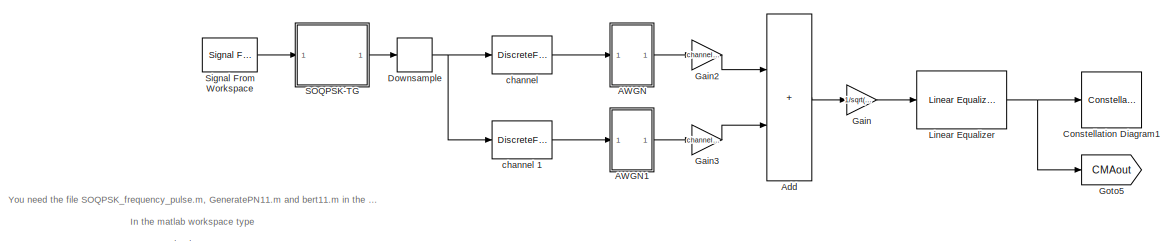
[diagram: root canvas - part 1/2, full width, top band]
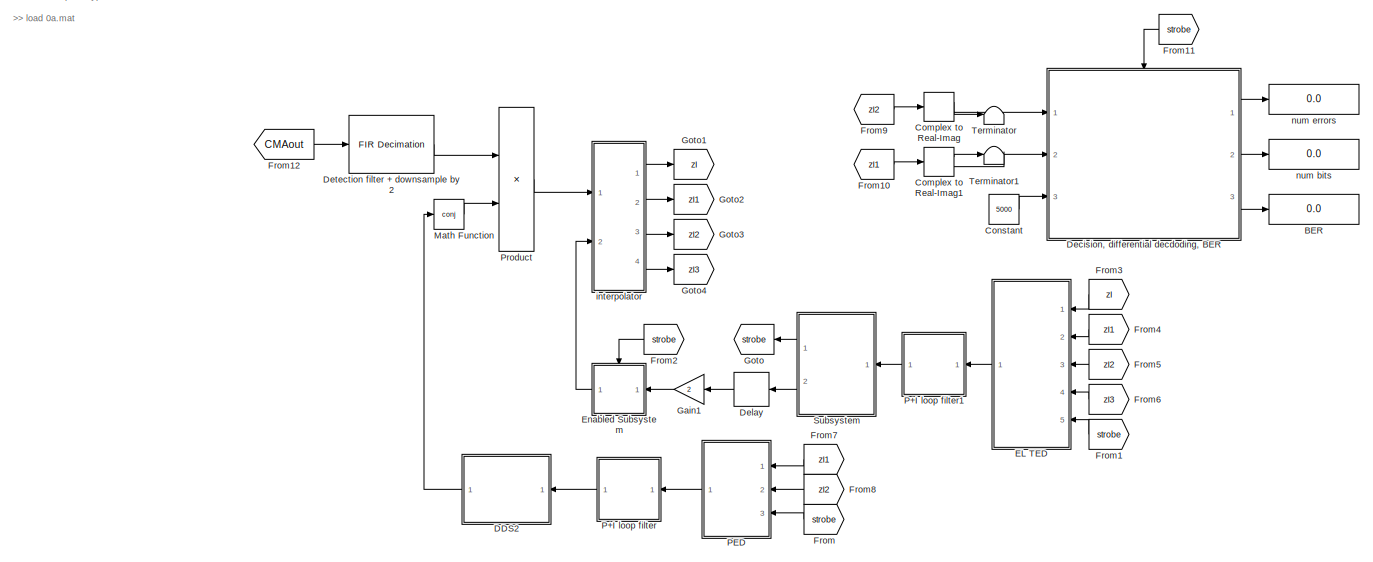
[diagram: root canvas - part 2/2, full width, middle band]
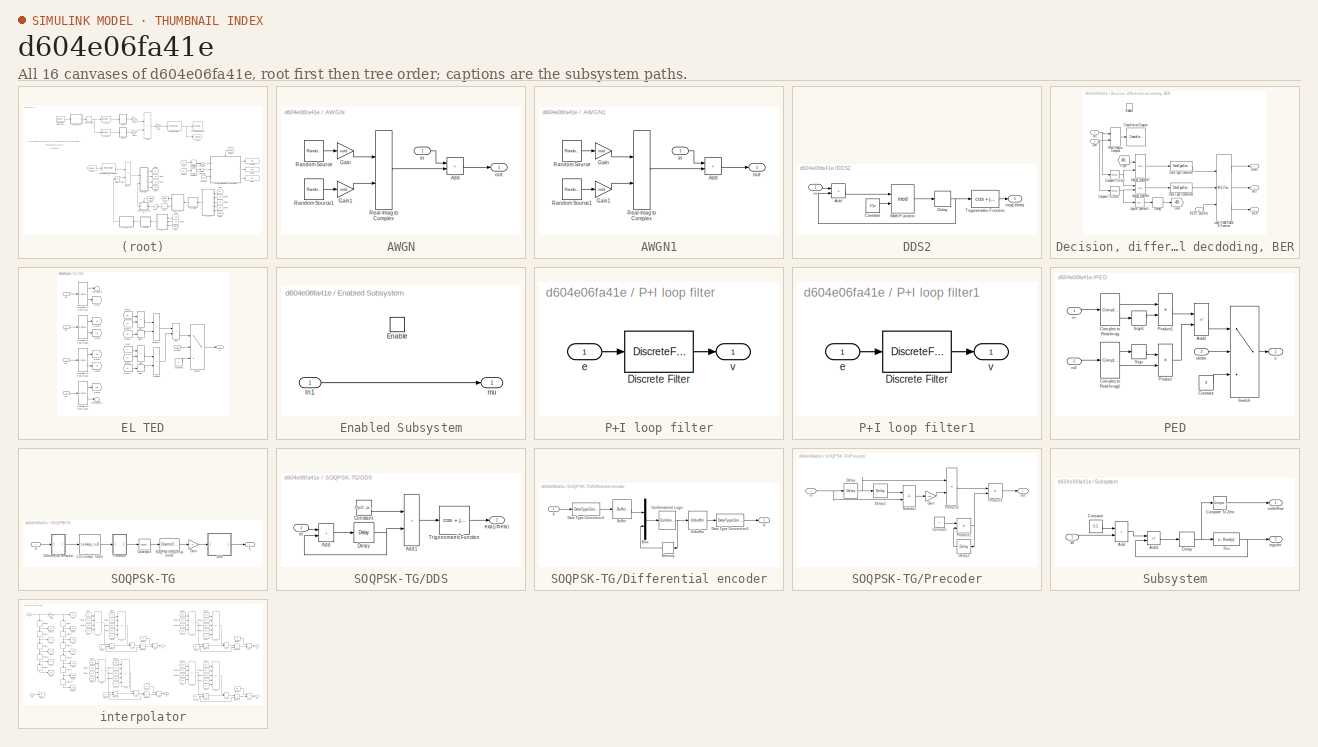
[diagram: thumbnail index - all 16 canvases of the model, root first then tree order]
MODEL slx_d604e06fa41e
KIND model
CONFIG AbsTol = auto
CONFIG EnableMultiTasking = off
CONFIG FixedStep = auto
CONFIG InitFcn = KCMA = 25;\npn11 = GeneratePN11;\nDetectionFilter = [0.010378066969709\n   0.023688987704657\n   0.009767134822858\n  -0.027017804469398\n  -0.089762303133391\n  -0.110346523809347\n  -0.051853991233850\n   0.154921158891652\n   0.568943123186263\n   0.792392871766106\n   0.792392871766106\n   0.568943123186263\n   0.154921158891652\n  -0.051853991233850\n  -0.110346523809347\n  -0.089762303133391\n  -0.02701780446...<+247ch>
CONFIG MaxStep = auto
CONFIG MinStep = auto
CONFIG RelTol = 1e-3
CONFIG SampleTimeConstraint = Unconstrained
CONFIG SolverName = FixedStepDiscrete
CONFIG StartTime = 0.0
CONFIG StopTime = 50000000
BLOCK [SubSystem] AWGN
  Ports = [1, 1]
  RequestExecContextInheritance = off
BLOCK [Sum] AWGN/Add
  IconShape = rectangular
  Ports = [2, 1]
BLOCK [Gain] AWGN/Gain
  Gain = nstd
BLOCK [Gain] AWGN/Gain1
  Gain = nstd
BLOCK [Reference] AWGN/Random Source  REF=dspsrcs4/Random
Source
  Ports = [0, 1]
  SourceBlock = dspsrcs4/Random\nSource
  SourceProductBaseCode = DS
  SourceType = Random Source
  UserDataPersistent = on
BLOCK [Reference] AWGN/Random Source1  REF=dspsrcs4/Random
Source
  Ports = [0, 1]
  SourceBlock = dspsrcs4/Random\nSource
  SourceProductBaseCode = DS
  SourceType = Random Source
  UserDataPersistent = on
BLOCK [RealImagToComplex] AWGN/Real-Imag to Complex
  Ports = [2, 1]
BLOCK [Inport] AWGN/in
BLOCK [Outport] AWGN/out
BLOCK [SubSystem] AWGN1
  Ports = [1, 1]
  RequestExecContextInheritance = off
BLOCK [Sum] AWGN1/Add
  IconShape = rectangular
  Ports = [2, 1]
BLOCK [Gain] AWGN1/Gain
  Gain = nstd
BLOCK [Gain] AWGN1/Gain1
  Gain = nstd
BLOCK [Reference] AWGN1/Random Source  REF=dspsrcs4/Random
Source
  Ports = [0, 1]
  SourceBlock = dspsrcs4/Random\nSource
  SourceProductBaseCode = DS
  SourceType = Random Source
  UserDataPersistent = on
BLOCK [Reference] AWGN1/Random Source1  REF=dspsrcs4/Random
Source
  Ports = [0, 1]
  SourceBlock = dspsrcs4/Random\nSource
  SourceProductBaseCode = DS
  SourceType = Random Source
  UserDataPersistent = on
BLOCK [RealImagToComplex] AWGN1/Real-Imag to Complex
  Ports = [2, 1]
BLOCK [Inport] AWGN1/in
BLOCK [Outport] AWGN1/out
BLOCK [Sum] Add
  IconShape = rectangular
  Ports = [2, 1]
BLOCK [Display] BER
  Decimation = 1
  Ports = [1]
BLOCK [ComplexToRealImag] Complex to Real-Imag
  Ports = [1, 2]
BLOCK [ComplexToRealImag] Complex to Real-Imag1
  Ports = [1, 2]
BLOCK [Constant] Constant
  Value = 5000
BLOCK [ConstellationDiagram] Constellation Diagram1
  Commented = on
  DefaultConfigurationName = comm.scopes.ConstellationDiagramBlockCfg
  GraphicalSettings = {"GraphicalSettings":{"Style":{"AuxLineProperties":"struct","AxesProperties":"struct","Color":"[1 1 0.0666666666666667]","CurrentConfiguration":"extmgr.ConfigurationSet","LineColor":"[1 1 0.0666666666666667]","LineProperties":"struct","LineStyle":"-","LineWidth":"0.5","Marker":".","MarkerEdgeColor":"auto","MarkerFaceColor":"none","MarkerSize":"6","Position":"[1844 827 359 366]","RefConLineWidth":"...<+306ch>
  Ports = [1]
  ScopeFrameLocation = window
  ScopeSpecificationString = comm.scopes.ConstellationDiagramBlockCfg('CurrentConfiguration', extmgr.ConfigurationSet(extmgr.Configuration('Core','General UI',true),extmgr.Configuration('Core','Source UI',true),extmgr.Configuration('Sources','WiredSimulink',true),extmgr.Configuration('Sources','SPTool',false),extmgr.Configuration('Sources','File',false),extmgr.Configuration('Sources','Workspace',false),extmgr.Configuration('S...<+1910ch>
  SymbolsToDisplay = 400
  SymbolsToDisplaySource = Property
  WasSavedAsWebScope = on
  WindowPosition = [2078.000000,1122.000000,359.000000,366.000000,]
BLOCK [SubSystem] DDS2
  Ports = [1, 1]
  RequestExecContextInheritance = off
BLOCK [Sum] DDS2/Add
  IconShape = rectangular
  Ports = [2, 1]
BLOCK [Constant] DDS2/Constant
  Value = 2*pi
BLOCK [Delay] DDS2/Delay
  DelayLength = 1
  InputPortMap = u0
  Ports = [1, 1]
BLOCK [Math] DDS2/Math Function
  Operator = mod
  Ports = [2, 1]
BLOCK [Trigonometry] DDS2/Trigonometric Function
  Operator = cos + jsin
  Ports = [1, 1]
BLOCK [Outport] DDS2/exp(j theta)
BLOCK [Inport] DDS2/in
BLOCK [SubSystem] Decision, differential decdoding, BER
  Ports = [3, 3, 1]
  RequestExecContextInheritance = off
  TreatAsAtomicUnit = on
BLOCK [Outport] Decision, differential decdoding, BER/BER
  Port = 3
BLOCK [Inport] Decision, differential decdoding, BER/BERT skip bits
  Port = 3
BLOCK [Reference] Decision, differential decdoding, BER/Compare To Zero  REF=simulink/Logic and Bit
Operations/Compare
To Zero
  Ports = [1, 1]
  SourceBlock = simulink/Logic and Bit\nOperations/Compare\nTo Zero
  SourceProductBaseCode = SL
  SourceType = Compare To Zero
BLOCK [Reference] Decision, differential decdoding, BER/Compare To Zero1  REF=simulink/Logic and Bit
Operations/Compare
To Zero
  Ports = [1, 1]
  SourceBlock = simulink/Logic and Bit\nOperations/Compare\nTo Zero
  SourceProductBaseCode = SL
  SourceType = Compare To Zero
BLOCK [ConstellationDiagram] Decision, differential decdoding, BER/Constellation Diagram
  DefaultConfigurationName = comm.scopes.ConstellationDiagramBlockCfg
  GraphicalSettings = {"GraphicalSettings":{"Style":{"AuxLineProperties":"struct","AveragePower":"sqrt(8)","AxesProperties":"struct","Color":"[1 1 0.0666666666666667]","CurrentConfiguration":"extmgr.ConfigurationSet","LineColor":"[1 1 0.0666666666666667]","LineProperties":"struct","LineStyle":"-","LineWidth":"0.5","Marker":".","MarkerEdgeColor":"auto","MarkerFaceColor":"none","MarkerSize":"6","MaxXLim":"2.6966","MaxYLi...<+409ch>
  Ports = [1]
  ReferenceConstellation = {[2+2i                    -2+2i                    -2-2i                     2-2i]}
  ScopeFrameLocation = window
  ScopeSpecificationString = comm.scopes.ConstellationDiagramBlockCfg('CurrentConfiguration', extmgr.ConfigurationSet(extmgr.Configuration('Core','General UI',true),extmgr.Configuration('Core','Source UI',true),extmgr.Configuration('Sources','WiredSimulink',true),extmgr.Configuration('Sources','SPTool',false),extmgr.Configuration('Sources','File',false),extmgr.Configuration('Sources','Workspace',false),extmgr.Configuration('S...<+2013ch>
  SymbolsToDisplay = 400
  SymbolsToDisplaySource = Property
  Visible = on
  WasSavedAsWebScope = on
  WindowPosition = [2078.000000,727.000000,359.000000,366.000000,]
  XLimits = [-2.7774 2.6966]
  YLimits = [-3.4617 3.3809]
BLOCK [DataTypeConversion] Decision, differential decdoding, BER/Data Type Conversion
  OutDataTypeStr = double
  RndMeth = Floor
  SaturateOnIntegerOverflow = off
BLOCK [DataTypeConversion] Decision, differential decdoding, BER/Data Type Conversion1
  OutDataTypeStr = double
  RndMeth = Floor
  SaturateOnIntegerOverflow = off
BLOCK [Delay] Decision, differential decdoding, BER/Delay
  DelayLength = 1
  InputPortMap = u0
  Ports = [1, 1]
BLOCK [EnablePort] Decision, differential decdoding, BER/Enable
  Ports = []
BLOCK [From] Decision, differential decdoding, BER/From
  GotoTag = d2k1
BLOCK [Goto] Decision, differential decdoding, BER/Goto
  GotoTag = d2k1
BLOCK [Inport] Decision, differential decdoding, BER/Ibit
BLOCK [M-S-Function] Decision, differential decdoding, BER/Level-2 MATLAB S-Function
  FunctionName = bert11
  Ports = [3, 3]
BLOCK [Logic] Decision, differential decdoding, BER/Logical Operator
  AllPortsSameDT = off
  Operator = XOR
  OutDataTypeStr = boolean
  Ports = [2, 1]
BLOCK [Logic] Decision, differential decdoding, BER/Logical Operator1
  AllPortsSameDT = off
  Operator = XOR
  OutDataTypeStr = boolean
  Ports = [2, 1]
BLOCK [Logic] Decision, differential decdoding, BER/Logical Operator2
  AllPortsSameDT = off
  Operator = NOT
  OutDataTypeStr = boolean
  Ports = [1, 1]
BLOCK [Inport] Decision, differential decdoding, BER/Qbit
  Port = 2
BLOCK [RealImagToComplex] Decision, differential decdoding, BER/Real-Imag to Complex
  Ports = [2, 1]
BLOCK [Outport] Decision, differential decdoding, BER/bits
  Port = 2
BLOCK [Outport] Decision, differential decdoding, BER/errors
BLOCK [Delay] Delay
  DelayLength = 1
  InputPortMap = u0
  NameLocation = top
  Ports = [1, 1]
BLOCK [Reference] Detection filter + downsample by 2  REF=dspmlti4/FIR
Decimation
  Ports = [1, 1]
  SourceBlock = dspmlti4/FIR\nDecimation
  SourceProductBaseCode = DS
  SourceType = FIR Decimation
  UserDataPersistent = on
BLOCK [DownSample] Downsample
  InputProcessing = Elements as channels (sample based)
  N = 5
  RateOptions = Allow multirate processing
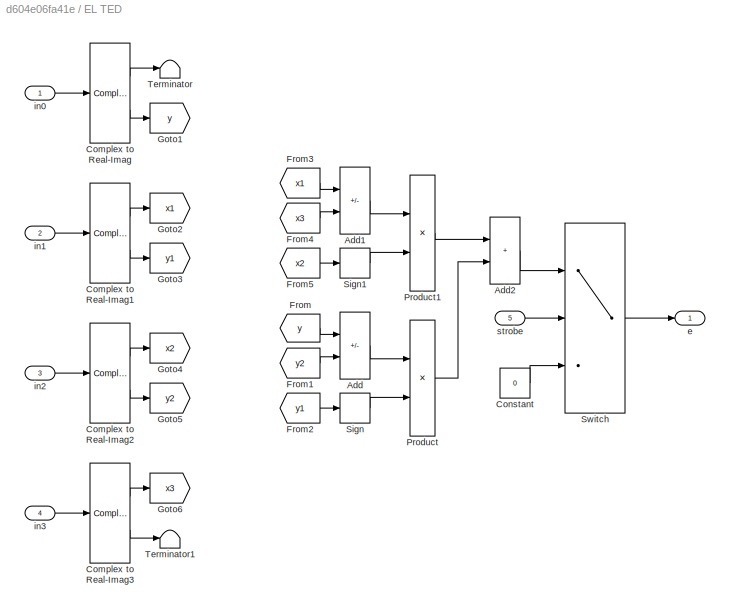
BLOCK [SubSystem] EL TED
  Ports = [5, 1]
  RequestExecContextInheritance = off
BLOCK [Sum] EL TED/Add
  IconShape = rectangular
  Inputs = +-
  Ports = [2, 1]
BLOCK [Sum] EL TED/Add1
  IconShape = rectangular
  Inputs = +-
  Ports = [2, 1]
BLOCK [Sum] EL TED/Add2
  IconShape = rectangular
  Ports = [2, 1]
BLOCK [ComplexToRealImag] EL TED/Complex to Real-Imag
  Ports = [1, 2]
BLOCK [ComplexToRealImag] EL TED/Complex to Real-Imag1
  Ports = [1, 2]
BLOCK [ComplexToRealImag] EL TED/Complex to Real-Imag2
  Ports = [1, 2]
BLOCK [ComplexToRealImag] EL TED/Complex to Real-Imag3
  Ports = [1, 2]
BLOCK [Constant] EL TED/Constant
  Value = 0
BLOCK [From] EL TED/From
  GotoTag = y
BLOCK [From] EL TED/From1
  GotoTag = y2
BLOCK [From] EL TED/From2
  GotoTag = y1
BLOCK [From] EL TED/From3
  GotoTag = x1
BLOCK [From] EL TED/From4
  GotoTag = x3
BLOCK [From] EL TED/From5
  GotoTag = x2
BLOCK [Goto] EL TED/Goto1
  GotoTag = y
BLOCK [Goto] EL TED/Goto2
  GotoTag = x1
BLOCK [Goto] EL TED/Goto3
  GotoTag = y1
BLOCK [Goto] EL TED/Goto4
  GotoTag = x2
BLOCK [Goto] EL TED/Goto5
  GotoTag = y2
BLOCK [Goto] EL TED/Goto6
  GotoTag = x3
BLOCK [Product] EL TED/Product
  Ports = [2, 1]
BLOCK [Product] EL TED/Product1
  Ports = [2, 1]
BLOCK [Signum] EL TED/Sign
BLOCK [Signum] EL TED/Sign1
BLOCK [Switch] EL TED/Switch
  Criteria = u2 > Threshold
  InputSameDT = off
  SaturateOnIntegerOverflow = off
  Threshold = 0.5
BLOCK [Terminator] EL TED/Terminator
BLOCK [Terminator] EL TED/Terminator1
BLOCK [Outport] EL TED/e
BLOCK [Inport] EL TED/in0
BLOCK [Inport] EL TED/in1
  Port = 2
BLOCK [Inport] EL TED/in2
  Port = 3
BLOCK [Inport] EL TED/in3
  Port = 4
BLOCK [Inport] EL TED/strobe
  Port = 5
BLOCK [SubSystem] Enabled Subsystem
  Ports = [1, 1, 1]
  RequestExecContextInheritance = off
  TreatAsAtomicUnit = on
BLOCK [EnablePort] Enabled Subsystem/Enable
  Ports = []
BLOCK [Inport] Enabled Subsystem/In1
BLOCK [Outport] Enabled Subsystem/mu
BLOCK [From] From
  GotoTag = strobe
BLOCK [From] From1
  GotoTag = strobe
BLOCK [From] From10
  GotoTag = zI1
BLOCK [From] From11
  GotoTag = strobe
BLOCK [From] From12
  GotoTag = CMAout
BLOCK [From] From2
  GotoTag = strobe
BLOCK [From] From3
  GotoTag = zI
  NameLocation = top
BLOCK [From] From4
  GotoTag = zI1
  NameLocation = top
BLOCK [From] From5
  GotoTag = zI2
  NameLocation = top
BLOCK [From] From6
  GotoTag = zI3
  NameLocation = top
BLOCK [From] From7
  GotoTag = zI1
  NameLocation = top
BLOCK [From] From8
  GotoTag = zI2
  NameLocation = top
BLOCK [From] From9
  GotoTag = zI2
BLOCK [Gain] Gain
  Gain = 1/sqrt(E1+E2)
BLOCK [Gain] Gain1
  Gain = 2
  NameLocation = top
BLOCK [Gain] Gain2
  Gain = channelK1
BLOCK [Gain] Gain3
  Gain = channelK2 * exp(1i*channelPhi)
BLOCK [Goto] Goto
  GotoTag = strobe
  NameLocation = top
BLOCK [Goto] Goto1
  GotoTag = zI
BLOCK [Goto] Goto2
  GotoTag = zI1
BLOCK [Goto] Goto3
  GotoTag = zI2
BLOCK [Goto] Goto4
  GotoTag = zI3
BLOCK [Goto] Goto5
  GotoTag = CMAout
BLOCK [Reference] Linear Equalizer  REF=commeq3/Linear Equalizer
  Ports = [1, 1]
  SourceBlock = commeq3/Linear Equalizer
  SourceProductBaseCode = CM
  SourceType = Linear Equalizer
BLOCK [Math] Math Function
  Operator = conj
  Ports = [1, 1]
BLOCK [SubSystem] P+I loop filter
  Ports = [1, 1]
  RequestExecContextInheritance = off
BLOCK [DiscreteFilter] P+I loop filter/Discrete Filter
  Denominator = [1 -1]
  InputPortMap = u0
  Numerator = [(K1+K2) -K1]
  Ports = [1, 1]
BLOCK [Inport] P+I loop filter/e
BLOCK [Outport] P+I loop filter/v
BLOCK [SubSystem] P+I loop filter1
  Ports = [1, 1]
  RequestExecContextInheritance = off
BLOCK [DiscreteFilter] P+I loop filter1/Discrete Filter
  Denominator = [1 -1]
  InputPortMap = u0
  Numerator = [(K1+K2) -K1]
  Ports = [1, 1]
BLOCK [Inport] P+I loop filter1/e
BLOCK [Outport] P+I loop filter1/v
BLOCK [SubSystem] PED
  Ports = [3, 1]
  RequestExecContextInheritance = off
BLOCK [Sum] PED/Add2
  IconShape = rectangular
  Inputs = -+
  Ports = [2, 1]
BLOCK [ComplexToRealImag] PED/Complex to Real-Imag
  Ports = [1, 2]
BLOCK [ComplexToRealImag] PED/Complex to Real-Imag1
  Ports = [1, 2]
BLOCK [Constant] PED/Constant
  Value = 0
BLOCK [Product] PED/Product
  Ports = [2, 1]
BLOCK [Product] PED/Product1
  Ports = [2, 1]
BLOCK [Signum] PED/Sign
BLOCK [Signum] PED/Sign1
BLOCK [Switch] PED/Switch
  Criteria = u2 > Threshold
  InputSameDT = off
  SaturateOnIntegerOverflow = off
  Threshold = 0.5
BLOCK [Outport] PED/e
BLOCK [Inport] PED/in
BLOCK [Inport] PED/in2
  Port = 2
BLOCK [Inport] PED/strobe
  Port = 3
BLOCK [Product] Product
  Ports = [2, 1]
BLOCK [SubSystem] SOQPSK-TG
  Ports = [1, 1]
  RequestExecContextInheritance = off
BLOCK [Lookup_n-D] SOQPSK-TG/1-D Lookup Table
  BreakpointsForDimension1 = [0 1]
  InputPortMap = u0
  InternalRulePriority = Speed
  NumberOfTableDimensions = 1
  Ports = [1, 1]
  RndMeth = Simplest
  Table = [-1 1]
BLOCK [SubSystem] SOQPSK-TG/DDS
  Ports = [1, 1]
  RequestExecContextInheritance = off
BLOCK [Sum] SOQPSK-TG/DDS/Add
  IconShape = rectangular
  Ports = [2, 1]
BLOCK [Sum] SOQPSK-TG/DDS/Add1
  IconShape = rectangular
  Ports = [2, 1]
BLOCK [Constant] SOQPSK-TG/DDS/Constant
  Value = 3*pi/2 - pi/4
BLOCK [Delay] SOQPSK-TG/DDS/Delay
  DelayLength = 1
  InputPortMap = u0
  Ports = [1, 1]
BLOCK [Trigonometry] SOQPSK-TG/DDS/Trigonometric Function
  Operator = cos + jsin
  Ports = [1, 1]
BLOCK [Outport] SOQPSK-TG/DDS/exp(j theta)
BLOCK [Inport] SOQPSK-TG/DDS/in
BLOCK [SubSystem] SOQPSK-TG/Differential encoder
  Ports = [1, 1]
  RequestExecContextInheritance = off
BLOCK [Buffer] SOQPSK-TG/Differential encoder/Buffer
  N = 2
  OutputFrames = off
BLOCK [CombinatorialLogic] SOQPSK-TG/Differential encoder/Combinatorial Logic
  TruthTable = [1 1; 0 0; 1 1; 0 0; 1 0; 0 1; 1 0; 0 1; 0 0; 1 1; 0 0; 1 1; 0 1; 1 0; 0 1; 1 0]
BLOCK [DataTypeConversion] SOQPSK-TG/Differential encoder/Data Type Conversion1
  OutDataTypeStr = boolean
  RndMeth = Floor
  SaturateOnIntegerOverflow = off
BLOCK [DataTypeConversion] SOQPSK-TG/Differential encoder/Data Type Conversion2
  OutDataTypeStr = double
  RndMeth = Floor
  SaturateOnIntegerOverflow = off
BLOCK [Memory] SOQPSK-TG/Differential encoder/Memory
  InheritSampleTime = on
  NameLocation = top
BLOCK [Mux] SOQPSK-TG/Differential encoder/Mux
  DisplayOption = bar
  Inputs = 2
  Ports = [2, 1]
BLOCK [Unbuffer] SOQPSK-TG/Differential encoder/Unbuffer
  Ports = [1, 1]
BLOCK [Inport] SOQPSK-TG/Differential encoder/b
BLOCK [Outport] SOQPSK-TG/Differential encoder/d
BLOCK [Gain] SOQPSK-TG/Gain
  Gain = pi
BLOCK [SubSystem] SOQPSK-TG/Precoder
  Ports = [1, 1]
  RequestExecContextInheritance = off
BLOCK [Constant] SOQPSK-TG/Precoder/Constant
  Value = -1
BLOCK [Delay] SOQPSK-TG/Precoder/Delay
  DelayLength = 1
  InitialCondition = -1
  InputPortMap = u0
  InputProcessing = Columns as channels (frame based)
  Ports = [1, 1]
BLOCK [Delay] SOQPSK-TG/Precoder/Delay1
  DelayLength = 1
  InitialCondition = -1
  InputPortMap = u0
  InputProcessing = Columns as channels (frame based)
  Ports = [1, 1]
BLOCK [Delay] SOQPSK-TG/Precoder/Delay2
  DelayLength = 1
  InitialCondition = 1
  InputPortMap = u0
  Ports = [1, 1]
BLOCK [Gain] SOQPSK-TG/Precoder/Gain
  Gain = 0.5
BLOCK [Product] SOQPSK-TG/Precoder/Product1
  Ports = [2, 1]
BLOCK [Product] SOQPSK-TG/Precoder/Product2
  Ports = [2, 1]
BLOCK [Product] SOQPSK-TG/Precoder/Product3
  Ports = [2, 1]
BLOCK [Sum] SOQPSK-TG/Precoder/Subtract
  IconShape = rectangular
  Inputs = -+
  Ports = [2, 1]
BLOCK [Inport] SOQPSK-TG/Precoder/in
BLOCK [Outport] SOQPSK-TG/Precoder/out
BLOCK [DiscreteFilter] SOQPSK-TG/SOQPSK frequency pulse
  Denominator = [1]
  InputPortMap = u0
  Numerator = SOQPSK_frequency_pulse(10)
  Ports = [1, 1]
BLOCK [Reference] SOQPSK-TG/Upsample  REF=dspsigops/Upsample
  Ports = [1, 1]
  SourceBlock = dspsigops/Upsample
  SourceProductBaseCode = DS
  SourceType = Upsample
  UserDataPersistent = on
BLOCK [Inport] SOQPSK-TG/b
BLOCK [Outport] SOQPSK-TG/s
BLOCK [Reference] Signal From Workspace  REF=dspsrcs4/Signal From
Workspace
  Ports = [0, 1]
  SourceBlock = dspsrcs4/Signal From\nWorkspace
  SourceProductBaseCode = DS
  SourceType = Signal From Workspace
BLOCK [SubSystem] Subsystem
  NameLocation = top
  Ports = [1, 2]
  RequestExecContextInheritance = off
BLOCK [Sum] Subsystem/Add
  IconShape = rectangular
  Ports = [2, 1]
BLOCK [Sum] Subsystem/Add1
  IconShape = rectangular
  Inputs = -+
  Ports = [2, 1]
BLOCK [Reference] Subsystem/Compare To Zero  REF=simulink/Logic and Bit
Operations/Compare
To Zero
  Ports = [1, 1]
  SourceBlock = simulink/Logic and Bit\nOperations/Compare\nTo Zero
  SourceProductBaseCode = SL
  SourceType = Compare To Zero
BLOCK [Constant] Subsystem/Constant
  Value = 0.5
BLOCK [Delay] Subsystem/Delay
  DelayLength = 1
  InputPortMap = u0
  Ports = [1, 1]
BLOCK [Fcn] Subsystem/Fcn
  Expr = u - floor(u)
BLOCK [Inport] Subsystem/W
BLOCK [Outport] Subsystem/register
  Port = 2
BLOCK [Outport] Subsystem/underflow
BLOCK [Terminator] Terminator
BLOCK [Terminator] Terminator1
BLOCK [DiscreteFir] channel 
  Coefficients = h1_pruned.'
  InputPortMap = u0
  OutputPortMap = o0
  Ports = [1, 1]
BLOCK [DiscreteFir] channel 1
  Coefficients = h2_pruned.'
  InputPortMap = u0
  OutputPortMap = o0
  Ports = [1, 1]
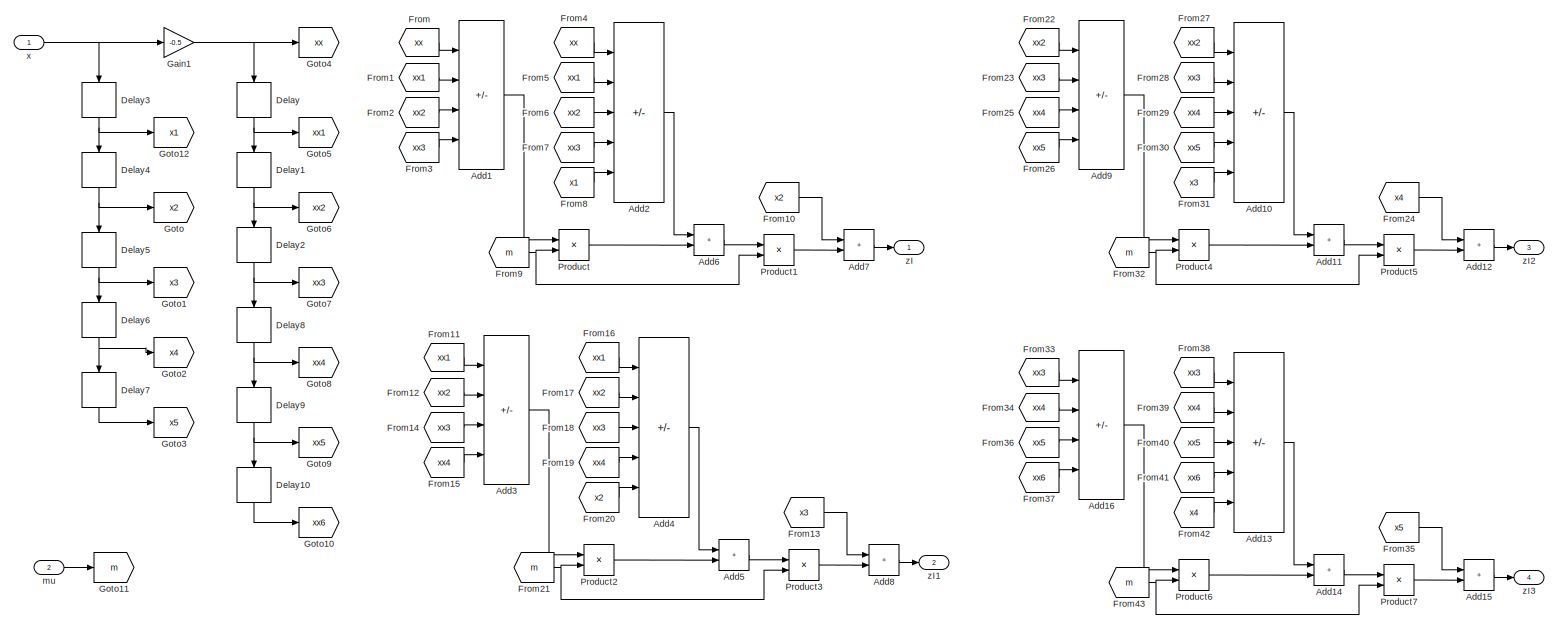
[diagram: interpolator - part 1/1, most of the canvas]
BLOCK [SubSystem] interpolator
  Ports = [2, 4]
  RequestExecContextInheritance = off
BLOCK [Sum] interpolator/Add1
  IconShape = rectangular
  Inputs = -++-
  Ports = [4, 1]
BLOCK [Sum] interpolator/Add10
  IconShape = rectangular
  Inputs = +-+++
  Ports = [5, 1]
BLOCK [Sum] interpolator/Add11
  IconShape = rectangular
  Ports = [2, 1]
BLOCK [Sum] interpolator/Add12
  IconShape = rectangular
  Ports = [2, 1]
BLOCK [Sum] interpolator/Add13
  IconShape = rectangular
  Inputs = +-+++
  Ports = [5, 1]
BLOCK [Sum] interpolator/Add14
  IconShape = rectangular
  Ports = [2, 1]
BLOCK [Sum] interpolator/Add15
  IconShape = rectangular
  Ports = [2, 1]
BLOCK [Sum] interpolator/Add16
  IconShape = rectangular
  Inputs = -++-
  Ports = [4, 1]
BLOCK [Sum] interpolator/Add2
  IconShape = rectangular
  Inputs = +-+++
  Ports = [5, 1]
BLOCK [Sum] interpolator/Add3
  IconShape = rectangular
  Inputs = -++-
  Ports = [4, 1]
BLOCK [Sum] interpolator/Add4
  IconShape = rectangular
  Inputs = +-+++
  Ports = [5, 1]
BLOCK [Sum] interpolator/Add5
  IconShape = rectangular
  Ports = [2, 1]
BLOCK [Sum] interpolator/Add6
  IconShape = rectangular
  Ports = [2, 1]
BLOCK [Sum] interpolator/Add7
  IconShape = rectangular
  Ports = [2, 1]
BLOCK [Sum] interpolator/Add8
  IconShape = rectangular
  Ports = [2, 1]
BLOCK [Sum] interpolator/Add9
  IconShape = rectangular
  Inputs = -++-
  Ports = [4, 1]
BLOCK [Delay] interpolator/Delay
  DelayLength = 1
  InputPortMap = u0
  NameLocation = left
  Ports = [1, 1]
BLOCK [Delay] interpolator/Delay1
  DelayLength = 1
  InputPortMap = u0
  NameLocation = left
  Ports = [1, 1]
BLOCK [Delay] interpolator/Delay10
  DelayLength = 1
  InputPortMap = u0
  NameLocation = left
  Ports = [1, 1]
BLOCK [Delay] interpolator/Delay2
  DelayLength = 1
  InputPortMap = u0
  NameLocation = left
  Ports = [1, 1]
BLOCK [Delay] interpolator/Delay3
  DelayLength = 1
  InputPortMap = u0
  NameLocation = left
  Ports = [1, 1]
BLOCK [Delay] interpolator/Delay4
  DelayLength = 1
  InputPortMap = u0
  NameLocation = left
  Ports = [1, 1]
BLOCK [Delay] interpolator/Delay5
  DelayLength = 1
  InputPortMap = u0
  NameLocation = left
  Ports = [1, 1]
BLOCK [Delay] interpolator/Delay6
  DelayLength = 1
  InputPortMap = u0
  NameLocation = left
  Ports = [1, 1]
BLOCK [Delay] interpolator/Delay7
  DelayLength = 1
  InputPortMap = u0
  NameLocation = left
  Ports = [1, 1]
BLOCK [Delay] interpolator/Delay8
  DelayLength = 1
  InputPortMap = u0
  NameLocation = left
  Ports = [1, 1]
BLOCK [Delay] interpolator/Delay9
  DelayLength = 1
  InputPortMap = u0
  NameLocation = left
  Ports = [1, 1]
BLOCK [From] interpolator/From
  GotoTag = xx
BLOCK [From] interpolator/From1
  GotoTag = xx1
BLOCK [From] interpolator/From10
  GotoTag = x2
BLOCK [From] interpolator/From11
  GotoTag = xx1
BLOCK [From] interpolator/From12
  GotoTag = xx2
BLOCK [From] interpolator/From13
  GotoTag = x3
BLOCK [From] interpolator/From14
  GotoTag = xx3
BLOCK [From] interpolator/From15
  GotoTag = xx4
BLOCK [From] interpolator/From16
  GotoTag = xx1
BLOCK [From] interpolator/From17
  GotoTag = xx2
BLOCK [From] interpolator/From18
  GotoTag = xx3
BLOCK [From] interpolator/From19
  GotoTag = xx4
BLOCK [From] interpolator/From2
  GotoTag = xx2
BLOCK [From] interpolator/From20
  GotoTag = x2
BLOCK [From] interpolator/From21
  GotoTag = m
BLOCK [From] interpolator/From22
  GotoTag = xx2
BLOCK [From] interpolator/From23
  GotoTag = xx3
BLOCK [From] interpolator/From24
  GotoTag = x4
BLOCK [From] interpolator/From25
  GotoTag = xx4
BLOCK [From] interpolator/From26
  GotoTag = xx5
BLOCK [From] interpolator/From27
  GotoTag = xx2
BLOCK [From] interpolator/From28
  GotoTag = xx3
BLOCK [From] interpolator/From29
  GotoTag = xx4
BLOCK [From] interpolator/From3
  GotoTag = xx3
BLOCK [From] interpolator/From30
  GotoTag = xx5
BLOCK [From] interpolator/From31
  GotoTag = x3
BLOCK [From] interpolator/From32
  GotoTag = m
BLOCK [From] interpolator/From33
  GotoTag = xx3
BLOCK [From] interpolator/From34
  GotoTag = xx4
BLOCK [From] interpolator/From35
  GotoTag = x5
BLOCK [From] interpolator/From36
  GotoTag = xx5
BLOCK [From] interpolator/From37
  GotoTag = xx6
BLOCK [From] interpolator/From38
  GotoTag = xx3
BLOCK [From] interpolator/From39
  GotoTag = xx4
BLOCK [From] interpolator/From4
  GotoTag = xx
BLOCK [From] interpolator/From40
  GotoTag = xx5
BLOCK [From] interpolator/From41
  GotoTag = xx6
BLOCK [From] interpolator/From42
  GotoTag = x4
BLOCK [From] interpolator/From43
  GotoTag = m
BLOCK [From] interpolator/From5
  GotoTag = xx1
BLOCK [From] interpolator/From6
  GotoTag = xx2
BLOCK [From] interpolator/From7
  GotoTag = xx3
BLOCK [From] interpolator/From8
  GotoTag = x1
BLOCK [From] interpolator/From9
  GotoTag = m
BLOCK [Gain] interpolator/Gain1
  Gain = -0.5
BLOCK [Goto] interpolator/Goto
  GotoTag = x2
BLOCK [Goto] interpolator/Goto1
  GotoTag = x3
BLOCK [Goto] interpolator/Goto10
  GotoTag = xx6
BLOCK [Goto] interpolator/Goto11
  GotoTag = m
BLOCK [Goto] interpolator/Goto12
  GotoTag = x1
BLOCK [Goto] interpolator/Goto2
  GotoTag = x4
BLOCK [Goto] interpolator/Goto3
  GotoTag = x5
BLOCK [Goto] interpolator/Goto4
  GotoTag = xx
BLOCK [Goto] interpolator/Goto5
  GotoTag = xx1
BLOCK [Goto] interpolator/Goto6
  GotoTag = xx2
BLOCK [Goto] interpolator/Goto7
  GotoTag = xx3
BLOCK [Goto] interpolator/Goto8
  GotoTag = xx4
BLOCK [Goto] interpolator/Goto9
  GotoTag = xx5
BLOCK [Product] interpolator/Product
  Ports = [2, 1]
BLOCK [Product] interpolator/Product1
  Ports = [2, 1]
BLOCK [Product] interpolator/Product2
  Ports = [2, 1]
BLOCK [Product] interpolator/Product3
  Ports = [2, 1]
BLOCK [Product] interpolator/Product4
  Ports = [2, 1]
BLOCK [Product] interpolator/Product5
  Ports = [2, 1]
BLOCK [Product] interpolator/Product6
  Ports = [2, 1]
BLOCK [Product] interpolator/Product7
  Ports = [2, 1]
BLOCK [Inport] interpolator/mu
  Port = 2
BLOCK [Inport] interpolator/x
BLOCK [Outport] interpolator/zI
BLOCK [Outport] interpolator/zI1
  Port = 2
BLOCK [Outport] interpolator/zI2
  Port = 3
BLOCK [Outport] interpolator/zI3
  Port = 4
BLOCK [Display] num bits
  Decimation = 1
  Ports = [1]
BLOCK [Display] num errors
  Decimation = 1
  Ports = [1]
ANNOTATION (root): You need the file SOQPSK_frequency_pulse.m, GeneratePN11.m and bert11.m in the same directory as this Simulink model. In the matlab workspace type >> load 0a.mat or the file for the channel pair you are working with. This Simulink model assumes the channels are in the column vectors h1_pruned and h2_pruned
LINE AWGN/Add:1 -> AWGN/out:1
LINE AWGN/Gain1:1 -> AWGN/Real-Imag to Complex:2
LINE AWGN/Gain:1 -> AWGN/Real-Imag to Complex:1
LINE AWGN/Random Source1:1 -> AWGN/Gain1:1
LINE AWGN/Random Source:1 -> AWGN/Gain:1
LINE AWGN/Real-Imag to Complex:1 -> AWGN/Add:2
LINE AWGN/in:1 -> AWGN/Add:1
LINE AWGN1/Add:1 -> AWGN1/out:1
LINE AWGN1/Gain1:1 -> AWGN1/Real-Imag to Complex:2
LINE AWGN1/Gain:1 -> AWGN1/Real-Imag to Complex:1
LINE AWGN1/Random Source1:1 -> AWGN1/Gain1:1
LINE AWGN1/Random Source:1 -> AWGN1/Gain:1
LINE AWGN1/Real-Imag to Complex:1 -> AWGN1/Add:2
LINE AWGN1/in:1 -> AWGN1/Add:1
LINE AWGN1:1 -> Gain3:1
LINE AWGN:1 -> Gain2:1
LINE Add:1 -> Gain:1
LINE Complex to Real-Imag1:1 -> Terminator1:1
LINE Complex to Real-Imag1:2 -> Decision, differential decdoding, BER:2
LINE Complex to Real-Imag:1 -> Decision, differential decdoding, BER:1
LINE Complex to Real-Imag:2 -> Terminator:1
LINE Constant:1 -> Decision, differential decdoding, BER:3
LINE DDS2/Add:1 -> DDS2/Math Function:1
LINE DDS2/Constant:1 -> DDS2/Math Function:2
NET DDS2/Delay:1 -> DDS2/Add:2, DDS2/Trigonometric Function:1
LINE DDS2/Math Function:1 -> DDS2/Delay:1
LINE DDS2/Trigonometric Function:1 -> DDS2/exp(j theta):1
LINE DDS2/in:1 -> DDS2/Add:1
LINE DDS2:1 -> Math Function:1
LINE Decision, differential decdoding, BER/BERT skip bits:1 -> Decision, differential decdoding, BER/Level-2 MATLAB S-Function:3
NET Decision, differential decdoding, BER/Compare To Zero1:1 -> Decision, differential decdoding, BER/Logical Operator2:1, Decision, differential decdoding, BER/Logical Operator:2
NET Decision, differential decdoding, BER/Compare To Zero:1 -> Decision, differential decdoding, BER/Logical Operator1:2, Decision, differential decdoding, BER/Logical Operator:1
LINE Decision, differential decdoding, BER/Data Type Conversion1:1 -> Decision, differential decdoding, BER/Level-2 MATLAB S-Function:2
LINE Decision, differential decdoding, BER/Data Type Conversion:1 -> Decision, differential decdoding, BER/Level-2 MATLAB S-Function:1
LINE Decision, differential decdoding, BER/Delay:1 -> Decision, differential decdoding, BER/Goto:1
LINE Decision, differential decdoding, BER/From:1 -> Decision, differential decdoding, BER/Logical Operator1:1
NET Decision, differential decdoding, BER/Ibit:1 -> Decision, differential decdoding, BER/Compare To Zero:1, Decision, differential decdoding, BER/Real-Imag to Complex:1
LINE Decision, differential decdoding, BER/Level-2 MATLAB S-Function:1 -> Decision, differential decdoding, BER/errors:1
LINE Decision, differential decdoding, BER/Level-2 MATLAB S-Function:2 -> Decision, differential decdoding, BER/bits:1
LINE Decision, differential decdoding, BER/Level-2 MATLAB S-Function:3 -> Decision, differential decdoding, BER/BER:1
LINE Decision, differential decdoding, BER/Logical Operator1:1 -> Decision, differential decdoding, BER/Data Type Conversion:1
LINE Decision, differential decdoding, BER/Logical Operator2:1 -> Decision, differential decdoding, BER/Delay:1
LINE Decision, differential decdoding, BER/Logical Operator:1 -> Decision, differential decdoding, BER/Data Type Conversion1:1
NET Decision, differential decdoding, BER/Qbit:1 -> Decision, differential decdoding, BER/Compare To Zero1:1, Decision, differential decdoding, BER/Real-Imag to Complex:2
LINE Decision, differential decdoding, BER/Real-Imag to Complex:1 -> Decision, differential decdoding, BER/Constellation Diagram:1
LINE Decision, differential decdoding, BER:1 -> num errors:1
LINE Decision, differential decdoding, BER:2 -> num bits:1
LINE Decision, differential decdoding, BER:3 -> BER:1
LINE Delay:1 -> Gain1:1
LINE Detection filter + downsample by 2:1 -> Product:1
NET Downsample:1 -> channel 1:1, channel :1
LINE EL TED/Add1:1 -> EL TED/Product1:1
LINE EL TED/Add2:1 -> EL TED/Switch:1
LINE EL TED/Add:1 -> EL TED/Product:1
LINE EL TED/Complex to Real-Imag1:1 -> EL TED/Goto2:1
LINE EL TED/Complex to Real-Imag1:2 -> EL TED/Goto3:1
LINE EL TED/Complex to Real-Imag2:1 -> EL TED/Goto4:1
LINE EL TED/Complex to Real-Imag2:2 -> EL TED/Goto5:1
LINE EL TED/Complex to Real-Imag3:1 -> EL TED/Goto6:1
LINE EL TED/Complex to Real-Imag3:2 -> EL TED/Terminator1:1
LINE EL TED/Complex to Real-Imag:1 -> EL TED/Terminator:1
LINE EL TED/Complex to Real-Imag:2 -> EL TED/Goto1:1
LINE EL TED/Constant:1 -> EL TED/Switch:3
LINE EL TED/From1:1 -> EL TED/Add:2
LINE EL TED/From2:1 -> EL TED/Sign:1
LINE EL TED/From3:1 -> EL TED/Add1:1
LINE EL TED/From4:1 -> EL TED/Add1:2
LINE EL TED/From5:1 -> EL TED/Sign1:1
LINE EL TED/From:1 -> EL TED/Add:1
LINE EL TED/Product1:1 -> EL TED/Add2:1
LINE EL TED/Product:1 -> EL TED/Add2:2
LINE EL TED/Sign1:1 -> EL TED/Product1:2
LINE EL TED/Sign:1 -> EL TED/Product:2
LINE EL TED/Switch:1 -> EL TED/e:1
LINE EL TED/in0:1 -> EL TED/Complex to Real-Imag:1
LINE EL TED/in1:1 -> EL TED/Complex to Real-Imag1:1
LINE EL TED/in2:1 -> EL TED/Complex to Real-Imag2:1
LINE EL TED/in3:1 -> EL TED/Complex to Real-Imag3:1
LINE EL TED/strobe:1 -> EL TED/Switch:2
LINE EL TED:1 -> P+I loop filter1:1
LINE Enabled Subsystem/In1:1 -> Enabled Subsystem/mu:1
LINE Enabled Subsystem:1 -> interpolator:2
LINE From10:1 -> Complex to Real-Imag1:1
LINE From11:1 -> Decision, differential decdoding, BER:enable
LINE From12:1 -> Detection filter + downsample by 2:1
LINE From1:1 -> EL TED:5
LINE From2:1 -> Enabled Subsystem:enable
LINE From3:1 -> EL TED:1
LINE From4:1 -> EL TED:2
LINE From5:1 -> EL TED:3
LINE From6:1 -> EL TED:4
LINE From7:1 -> PED:1
LINE From8:1 -> PED:2
LINE From9:1 -> Complex to Real-Imag:1
LINE From:1 -> PED:3
LINE Gain1:1 -> Enabled Subsystem:1
LINE Gain2:1 -> Add:1
LINE Gain3:1 -> Add:2
LINE Gain:1 -> Linear Equalizer:1
NET Linear Equalizer:1 -> Constellation Diagram1:1, Goto5:1
LINE Math Function:1 -> Product:2
LINE P+I loop filter/Discrete Filter:1 -> P+I loop filter/v:1
LINE P+I loop filter/e:1 -> P+I loop filter/Discrete Filter:1
LINE P+I loop filter1/Discrete Filter:1 -> P+I loop filter1/v:1
LINE P+I loop filter1/e:1 -> P+I loop filter1/Discrete Filter:1
LINE P+I loop filter1:1 -> Subsystem:1
LINE P+I loop filter:1 -> DDS2:1
LINE PED/Add2:1 -> PED/Switch:1
LINE PED/Complex to Real-Imag1:1 -> PED/Sign:1
LINE PED/Complex to Real-Imag1:2 -> PED/Product:2
LINE PED/Complex to Real-Imag:1 -> PED/Product1:1
LINE PED/Complex to Real-Imag:2 -> PED/Sign1:1
LINE PED/Constant:1 -> PED/Switch:3
LINE PED/Product1:1 -> PED/Add2:1
LINE PED/Product:1 -> PED/Add2:2
LINE PED/Sign1:1 -> PED/Product1:2
LINE PED/Sign:1 -> PED/Product:1
LINE PED/Switch:1 -> PED/e:1
LINE PED/in2:1 -> PED/Complex to Real-Imag1:1
LINE PED/in:1 -> PED/Complex to Real-Imag:1
LINE PED/strobe:1 -> PED/Switch:2
LINE PED:1 -> P+I loop filter:1
LINE Product:1 -> interpolator:1
LINE SOQPSK-TG/1-D Lookup Table:1 -> SOQPSK-TG/Precoder:1
LINE SOQPSK-TG/DDS/Add1:1 -> SOQPSK-TG/DDS/Trigonometric Function:1
LINE SOQPSK-TG/DDS/Add:1 -> SOQPSK-TG/DDS/Delay:1
LINE SOQPSK-TG/DDS/Constant:1 -> SOQPSK-TG/DDS/Add1:1
NET SOQPSK-TG/DDS/Delay:1 -> SOQPSK-TG/DDS/Add1:2, SOQPSK-TG/DDS/Add:2
LINE SOQPSK-TG/DDS/Trigonometric Function:1 -> SOQPSK-TG/DDS/exp(j theta):1
LINE SOQPSK-TG/DDS/in:1 -> SOQPSK-TG/DDS/Add:1
LINE SOQPSK-TG/DDS:1 -> SOQPSK-TG/s:1
LINE SOQPSK-TG/Differential encoder/Buffer:1 -> SOQPSK-TG/Differential encoder/Mux:1
NET SOQPSK-TG/Differential encoder/Combinatorial Logic:1 -> SOQPSK-TG/Differential encoder/Memory:1, SOQPSK-TG/Differential encoder/Unbuffer:1
LINE SOQPSK-TG/Differential encoder/Data Type Conversion1:1 -> SOQPSK-TG/Differential encoder/Buffer:1
LINE SOQPSK-TG/Differential encoder/Data Type Conversion2:1 -> SOQPSK-TG/Differential encoder/d:1
LINE SOQPSK-TG/Differential encoder/Memory:1 -> SOQPSK-TG/Differential encoder/Mux:2
LINE SOQPSK-TG/Differential encoder/Mux:1 -> SOQPSK-TG/Differential encoder/Combinatorial Logic:1
LINE SOQPSK-TG/Differential encoder/Unbuffer:1 -> SOQPSK-TG/Differential encoder/Data Type Conversion2:1
LINE SOQPSK-TG/Differential encoder/b:1 -> SOQPSK-TG/Differential encoder/Data Type Conversion1:1
LINE SOQPSK-TG/Differential encoder:1 -> SOQPSK-TG/1-D Lookup Table:1
LINE SOQPSK-TG/Gain:1 -> SOQPSK-TG/DDS:1
LINE SOQPSK-TG/Precoder/Constant:1 -> SOQPSK-TG/Precoder/Product1:1
LINE SOQPSK-TG/Precoder/Delay1:1 -> SOQPSK-TG/Precoder/Subtract:1
LINE SOQPSK-TG/Precoder/Delay2:1 -> SOQPSK-TG/Precoder/Product1:2
NET SOQPSK-TG/Precoder/Delay:1 -> SOQPSK-TG/Precoder/Delay1:1, SOQPSK-TG/Precoder/Product2:1
LINE SOQPSK-TG/Precoder/Gain:1 -> SOQPSK-TG/Precoder/Product2:2
NET SOQPSK-TG/Precoder/Product1:1 -> SOQPSK-TG/Precoder/Delay2:1, SOQPSK-TG/Precoder/Product3:2
LINE SOQPSK-TG/Precoder/Product2:1 -> SOQPSK-TG/Precoder/Product3:1
LINE SOQPSK-TG/Precoder/Product3:1 -> SOQPSK-TG/Precoder/out:1
LINE SOQPSK-TG/Precoder/Subtract:1 -> SOQPSK-TG/Precoder/Gain:1
NET SOQPSK-TG/Precoder/in:1 -> SOQPSK-TG/Precoder/Delay:1, SOQPSK-TG/Precoder/Subtract:2
LINE SOQPSK-TG/Precoder:1 -> SOQPSK-TG/Upsample:1
LINE SOQPSK-TG/SOQPSK frequency pulse:1 -> SOQPSK-TG/Gain:1
LINE SOQPSK-TG/Upsample:1 -> SOQPSK-TG/SOQPSK frequency pulse:1
LINE SOQPSK-TG/b:1 -> SOQPSK-TG/Differential encoder:1
LINE SOQPSK-TG:1 -> Downsample:1
LINE Signal From Workspace:1 -> SOQPSK-TG:1
LINE Subsystem/Add1:1 -> Subsystem/Delay:1
LINE Subsystem/Add:1 -> Subsystem/Add1:1
LINE Subsystem/Compare To Zero:1 -> Subsystem/underflow:1
LINE Subsystem/Constant:1 -> Subsystem/Add:1
NET Subsystem/Delay:1 -> Subsystem/Compare To Zero:1, Subsystem/Fcn:1
NET Subsystem/Fcn:1 -> Subsystem/Add1:2, Subsystem/register:1
LINE Subsystem/W:1 -> Subsystem/Add:2
LINE Subsystem:1 -> Goto:1
LINE Subsystem:2 -> Delay:1
LINE channel 1:1 -> AWGN1:1
LINE channel :1 -> AWGN:1
LINE interpolator/Add10:1 -> interpolator/Add11:1
LINE interpolator/Add11:1 -> interpolator/Product5:1
LINE interpolator/Add12:1 -> interpolator/zI2:1
LINE interpolator/Add13:1 -> interpolator/Add14:1
LINE interpolator/Add14:1 -> interpolator/Product7:1
LINE interpolator/Add15:1 -> interpolator/zI3:1
LINE interpolator/Add16:1 -> interpolator/Product6:1
LINE interpolator/Add1:1 -> interpolator/Product:1
LINE interpolator/Add2:1 -> interpolator/Add6:1
LINE interpolator/Add3:1 -> interpolator/Product2:1
LINE interpolator/Add4:1 -> interpolator/Add5:1
LINE interpolator/Add5:1 -> interpolator/Product3:1
LINE interpolator/Add6:1 -> interpolator/Product1:1
LINE interpolator/Add7:1 -> interpolator/zI:1
LINE interpolator/Add8:1 -> interpolator/zI1:1
LINE interpolator/Add9:1 -> interpolator/Product4:1
LINE interpolator/Delay10:1 -> interpolator/Goto10:1
NET interpolator/Delay1:1 -> interpolator/Delay2:1, interpolator/Goto6:1
NET interpolator/Delay2:1 -> interpolator/Delay8:1, interpolator/Goto7:1
NET interpolator/Delay3:1 -> interpolator/Delay4:1, interpolator/Goto12:1
NET interpolator/Delay4:1 -> interpolator/Delay5:1, interpolator/Goto:1
NET interpolator/Delay5:1 -> interpolator/Delay6:1, interpolator/Goto1:1
NET interpolator/Delay6:1 -> interpolator/Delay7:1, interpolator/Goto2:1
LINE interpolator/Delay7:1 -> interpolator/Goto3:1
NET interpolator/Delay8:1 -> interpolator/Delay9:1, interpolator/Goto8:1
NET interpolator/Delay9:1 -> interpolator/Delay10:1, interpolator/Goto9:1
NET interpolator/Delay:1 -> interpolator/Delay1:1, interpolator/Goto5:1
LINE interpolator/From10:1 -> interpolator/Add7:1
LINE interpolator/From11:1 -> interpolator/Add3:1
LINE interpolator/From12:1 -> interpolator/Add3:2
LINE interpolator/From13:1 -> interpolator/Add8:1
LINE interpolator/From14:1 -> interpolator/Add3:3
LINE interpolator/From15:1 -> interpolator/Add3:4
LINE interpolator/From16:1 -> interpolator/Add4:1
LINE interpolator/From17:1 -> interpolator/Add4:2
LINE interpolator/From18:1 -> interpolator/Add4:3
LINE interpolator/From19:1 -> interpolator/Add4:4
LINE interpolator/From1:1 -> interpolator/Add1:2
LINE interpolator/From20:1 -> interpolator/Add4:5
NET interpolator/From21:1 -> interpolator/Product2:2, interpolator/Product3:2
LINE interpolator/From22:1 -> interpolator/Add9:1
LINE interpolator/From23:1 -> interpolator/Add9:2
LINE interpolator/From24:1 -> interpolator/Add12:1
LINE interpolator/From25:1 -> interpolator/Add9:3
LINE interpolator/From26:1 -> interpolator/Add9:4
LINE interpolator/From27:1 -> interpolator/Add10:1
LINE interpolator/From28:1 -> interpolator/Add10:2
LINE interpolator/From29:1 -> interpolator/Add10:3
LINE interpolator/From2:1 -> interpolator/Add1:3
LINE interpolator/From30:1 -> interpolator/Add10:4
LINE interpolator/From31:1 -> interpolator/Add10:5
NET interpolator/From32:1 -> interpolator/Product4:2, interpolator/Product5:2
LINE interpolator/From33:1 -> interpolator/Add16:1
LINE interpolator/From34:1 -> interpolator/Add16:2
LINE interpolator/From35:1 -> interpolator/Add15:1
LINE interpolator/From36:1 -> interpolator/Add16:3
LINE interpolator/From37:1 -> interpolator/Add16:4
LINE interpolator/From38:1 -> interpolator/Add13:1
LINE interpolator/From39:1 -> interpolator/Add13:2
LINE interpolator/From3:1 -> interpolator/Add1:4
LINE interpolator/From40:1 -> interpolator/Add13:3
LINE interpolator/From41:1 -> interpolator/Add13:4
LINE interpolator/From42:1 -> interpolator/Add13:5
NET interpolator/From43:1 -> interpolator/Product6:2, interpolator/Product7:2
LINE interpolator/From4:1 -> interpolator/Add2:1
LINE interpolator/From5:1 -> interpolator/Add2:2
LINE interpolator/From6:1 -> interpolator/Add2:3
LINE interpolator/From7:1 -> interpolator/Add2:4
LINE interpolator/From8:1 -> interpolator/Add2:5
NET interpolator/From9:1 -> interpolator/Product1:2, interpolator/Product:2
LINE interpolator/From:1 -> interpolator/Add1:1
NET interpolator/Gain1:1 -> interpolator/Delay:1, interpolator/Goto4:1
LINE interpolator/Product1:1 -> interpolator/Add7:2
LINE interpolator/Product2:1 -> interpolator/Add5:2
LINE interpolator/Product3:1 -> interpolator/Add8:2
LINE interpolator/Product4:1 -> interpolator/Add11:2
LINE interpolator/Product5:1 -> interpolator/Add12:2
LINE interpolator/Product6:1 -> interpolator/Add14:2
LINE interpolator/Product7:1 -> interpolator/Add15:2
LINE interpolator/Product:1 -> interpolator/Add6:2
LINE interpolator/mu:1 -> interpolator/Goto11:1
NET interpolator/x:1 -> interpolator/Delay3:1, interpolator/Gain1:1
LINE interpolator:1 -> Goto1:1
LINE interpolator:2 -> Goto2:1
LINE interpolator:3 -> Goto3:1
LINE interpolator:4 -> Goto4:1
note: NET lines group one-source signal fan-out (src -> all destinations, sorted); 1:1 wires keep LINE
